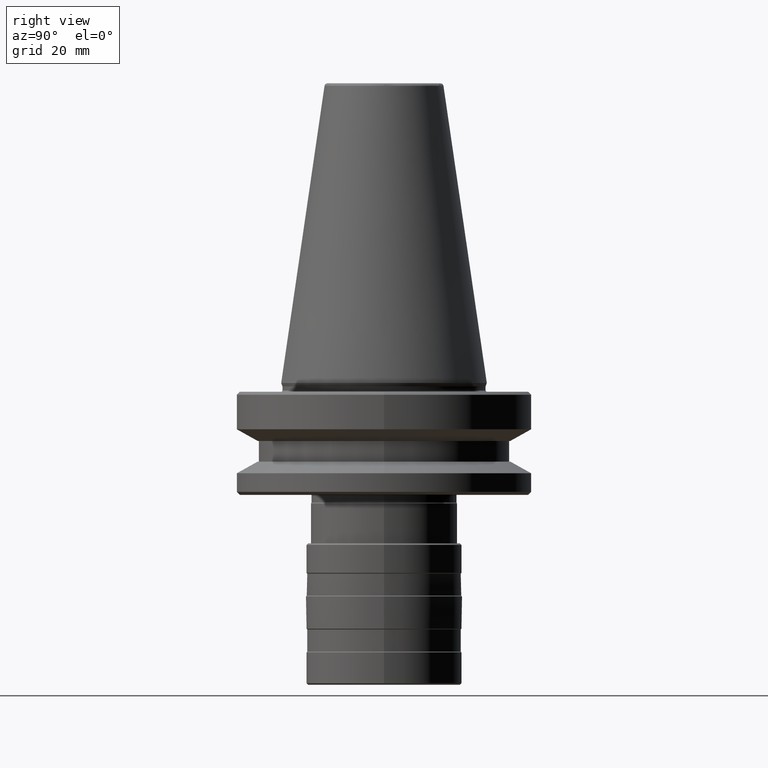
[diagram: clean part render]
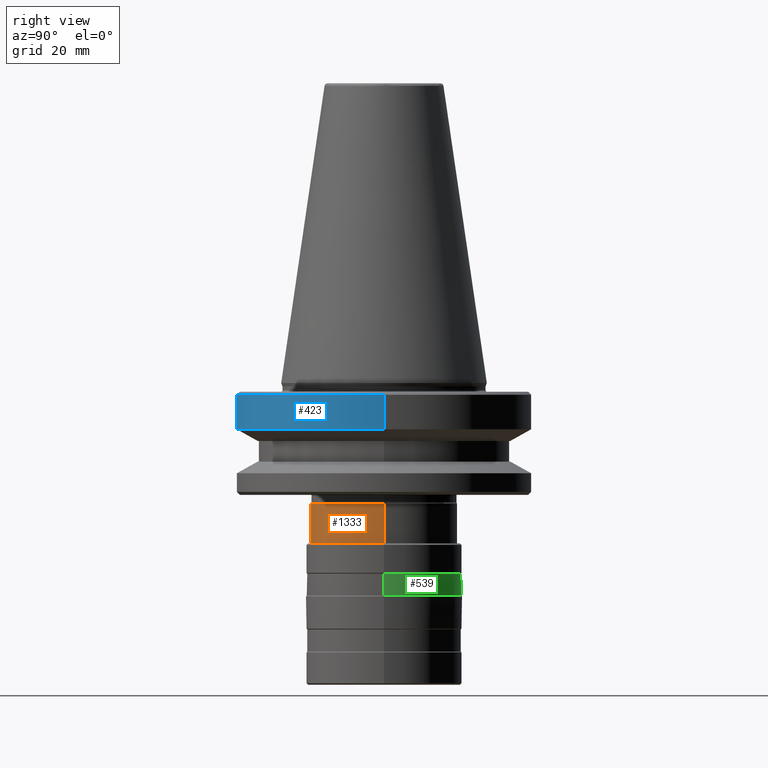
[diagram: same view with three faces highlighted in distinct colors, each labeled with its STEP entity id]
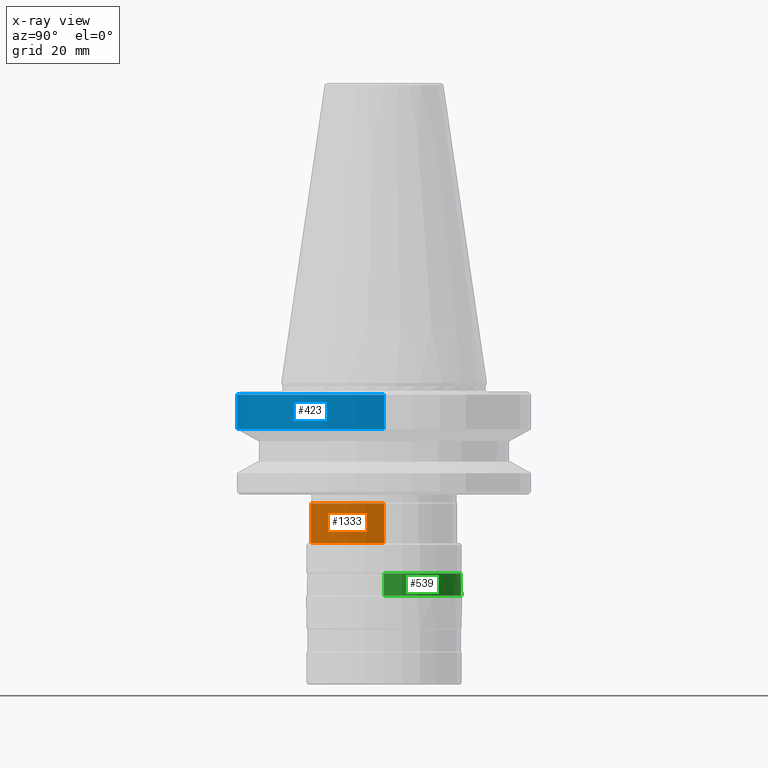
[diagram: x-ray of the same camera — body ghosted, the three highlighted faces saturated]
A machine part, right view with three faces highlighted in distinct colors.
The next image is the same camera in x-ray (body ghosted, the three faces saturated) — at least one of them is partly hidden behind the body in this view.
Their STEP definitions:

[orange] entity #1333 — the highlighted cylindrical surface (partial cylindrical patch) has radius 25 mm, axis along (0, 0, -1).
#31 = CARTESIAN_POINT ( 'NONE',  ( -25.00000000000000000, 0.0000000000000000000, -54.49999999999999300 ) ) ;
#35 = VERTEX_POINT ( 'NONE', #1122 ) ;
#59 = DIRECTION ( 'NONE',  ( -1.000000000000000000, 0.0000000000000000000, 0.0000000000000000000 ) ) ;
#61 = DIRECTION ( 'NONE',  ( -0.0000000000000000000, -0.0000000000000000000, 1.000000000000000000 ) ) ;
#62 = CARTESIAN_POINT ( 'NONE',  ( 0.0000000000000000000, 0.0000000000000000000, -41.00000000000000700 ) ) ;
#162 = EDGE_CURVE ( 'NONE', #1077, #736, #838, .T. ) ;
#175 = ORIENTED_EDGE ( 'NONE', *, *, #344, .T. ) ;
#176 = VECTOR ( 'NONE', #688, 1000.000000000000000 ) ;
#208 = CARTESIAN_POINT ( 'NONE',  ( -25.00000000000000700, 0.0000000000000000000, -41.00000000000000700 ) ) ;
#279 = CARTESIAN_POINT ( 'NONE',  ( 25.00000000000000000, 3.061616997868383000E-015, -54.49999999999999300 ) ) ;
#282 = CARTESIAN_POINT ( 'NONE',  ( 25.00000000000000000, 3.061616997868383000E-015, -41.00000000000000000 ) ) ;
#294 = DIRECTION ( 'NONE',  ( 0.0000000000000000000, 0.0000000000000000000, -1.000000000000000000 ) ) ;
#344 = EDGE_CURVE ( 'NONE', #845, #1077, #603, .T. ) ;
#526 = CARTESIAN_POINT ( 'NONE',  ( 0.0000000000000000000, 0.0000000000000000000, -41.00000000000000000 ) ) ;
#585 = CYLINDRICAL_SURFACE ( 'NONE', #1279, 25.00000000000000000 ) ;
#587 = VECTOR ( 'NONE', #294, 1000.000000000000000 ) ;
#603 = LINE ( 'NONE', #695, #176 ) ;
#615 = ORIENTED_EDGE ( 'NONE', *, *, #1020, .F. ) ;
#621 = FACE_OUTER_BOUND ( 'NONE', #1445, .T. ) ;
#677 = EDGE_CURVE ( 'NONE', #35, #736, #2044, .T. ) ;
#688 = DIRECTION ( 'NONE',  ( 0.0000000000000000000, 0.0000000000000000000, -1.000000000000000000 ) ) ;
#695 = CARTESIAN_POINT ( 'NONE',  ( -25.00000000000000000, 0.0000000000000000000, -41.00000000000000000 ) ) ;
#736 = VERTEX_POINT ( 'NONE', #279 ) ;
#799 = DIRECTION ( 'NONE',  ( -1.000000000000000000, 0.0000000000000000000, 0.0000000000000000000 ) ) ;
#808 = DIRECTION ( 'NONE',  ( -0.0000000000000000000, -0.0000000000000000000, 1.000000000000000000 ) ) ;
#838 = CIRCLE ( 'NONE', #1860, 25.00000000000000000 ) ;
#845 = VERTEX_POINT ( 'NONE', #208 ) ;
#901 = CARTESIAN_POINT ( 'NONE',  ( 0.0000000000000000000, 0.0000000000000000000, -54.49999999999999300 ) ) ;
#968 = ORIENTED_EDGE ( 'NONE', *, *, #162, .T. ) ;
#1020 = EDGE_CURVE ( 'NONE', #845, #35, #1642, .T. ) ;
#1077 = VERTEX_POINT ( 'NONE', #31 ) ;
#1122 = CARTESIAN_POINT ( 'NONE',  ( 25.00000000000000700, 3.061616997868383800E-015, -41.00000000000000700 ) ) ;
#1279 = AXIS2_PLACEMENT_3D ( 'NONE', #526, #2057, #2042 ) ;
#1333 = ADVANCED_FACE ( 'NONE', ( #621 ), #585, .T. ) ;
#1445 = EDGE_LOOP ( 'NONE', ( #1466, #615, #175, #968 ) ) ;
#1466 = ORIENTED_EDGE ( 'NONE', *, *, #677, .F. ) ;
#1634 = AXIS2_PLACEMENT_3D ( 'NONE', #62, #61, #59 ) ;
#1642 = CIRCLE ( 'NONE', #1634, 25.00000000000000700 ) ;
#1860 = AXIS2_PLACEMENT_3D ( 'NONE', #901, #808, #799 ) ;
#2042 = DIRECTION ( 'NONE',  ( -1.000000000000000000, 0.0000000000000000000, 0.0000000000000000000 ) ) ;
#2044 = LINE ( 'NONE', #282, #587 ) ;
#2057 = DIRECTION ( 'NONE',  ( 0.0000000000000000000, 0.0000000000000000000, -1.000000000000000000 ) ) ;

[blue] entity #423 — the highlighted cylindrical surface (partial cylindrical patch) has radius 50 mm, axis along (0, 0, 1).
#9 = VECTOR ( 'NONE', #770, 1000.000000000000000 ) ;
#51 = ORIENTED_EDGE ( 'NONE', *, *, #964, .T. ) ;
#96 = DIRECTION ( 'NONE',  ( 1.000000000000000000, 0.0000000000000000000, 0.0000000000000000000 ) ) ;
#98 = DIRECTION ( 'NONE',  ( -0.0000000000000000000, -0.0000000000000000000, 1.000000000000000000 ) ) ;
#100 = CARTESIAN_POINT ( 'NONE',  ( 0.0000000000000000000, 0.0000000000000000000, -15.72885534390020000 ) ) ;
#105 = LINE ( 'NONE', #771, #9 ) ;
#124 = VERTEX_POINT ( 'NONE', #2002 ) ;
#138 = EDGE_CURVE ( 'NONE', #1794, #706, #450, .T. ) ;
#140 = ORIENTED_EDGE ( 'NONE', *, *, #1992, .F. ) ;
#239 = ORIENTED_EDGE ( 'NONE', *, *, #138, .F. ) ;
#288 = CARTESIAN_POINT ( 'NONE',  ( 50.00000000071546700, 6.123233995824384900E-015, -4.000000000715458800 ) ) ;
#394 = CIRCLE ( 'NONE', #1613, 49.99999999999767700 ) ;
#400 = VERTEX_POINT ( 'NONE', #581 ) ;
#414 = FACE_OUTER_BOUND ( 'NONE', #1867, .T. ) ;
#423 = ADVANCED_FACE ( 'NONE', ( #414 ), #1379, .T. ) ;
#435 = VECTOR ( 'NONE', #454, 1000.000000000000000 ) ;
#450 = CIRCLE ( 'NONE', #764, 50.00000000071546000 ) ;
#454 = DIRECTION ( 'NONE',  ( 0.0000000000000000000, 0.0000000000000000000, 1.000000000000000000 ) ) ;
#483 = CARTESIAN_POINT ( 'NONE',  ( 50.00000000000000000, 0.0000000000000000000, -15.70022000299999700 ) ) ;
#501 = EDGE_CURVE ( 'NONE', #400, #706, #1788, .T. ) ;
#550 = CARTESIAN_POINT ( 'NONE',  ( 0.0000000000000000000, 0.0000000000000000000, -15.70022000299999700 ) ) ;
#554 = DIRECTION ( 'NONE',  ( 0.0000000000000000000, 0.0000000000000000000, 1.000000000000000000 ) ) ;
#568 = DIRECTION ( 'NONE',  ( 1.000000000000000000, 0.0000000000000000000, 0.0000000000000000000 ) ) ;
#581 = CARTESIAN_POINT ( 'NONE',  ( 49.99999999999767700, 0.0000000000000000000, -15.72885534390020000 ) ) ;
#706 = VERTEX_POINT ( 'NONE', #288 ) ;
#764 = AXIS2_PLACEMENT_3D ( 'NONE', #1270, #1124, #1661 ) ;
#770 = DIRECTION ( 'NONE',  ( 0.0000000000000000000, 0.0000000000000000000, 1.000000000000000000 ) ) ;
#771 = CARTESIAN_POINT ( 'NONE',  ( -50.00000000000000000, 6.123233995736766100E-015, -15.70022000299999700 ) ) ;
#964 = EDGE_CURVE ( 'NONE', #124, #400, #394, .T. ) ;
#1012 = CARTESIAN_POINT ( 'NONE',  ( -50.00000000071546700, 0.0000000000000000000, -4.000000000715458800 ) ) ;
#1124 = DIRECTION ( 'NONE',  ( -0.0000000000000000000, -0.0000000000000000000, 1.000000000000000000 ) ) ;
#1136 = ORIENTED_EDGE ( 'NONE', *, *, #501, .T. ) ;
#1270 = CARTESIAN_POINT ( 'NONE',  ( 0.0000000000000000000, 0.0000000000000000000, -4.000000000715458800 ) ) ;
#1379 = CYLINDRICAL_SURFACE ( 'NONE', #1718, 50.00000000000000000 ) ;
#1613 = AXIS2_PLACEMENT_3D ( 'NONE', #100, #98, #96 ) ;
#1661 = DIRECTION ( 'NONE',  ( -1.000000000000000000, 0.0000000000000000000, 5.204170427855954000E-017 ) ) ;
#1718 = AXIS2_PLACEMENT_3D ( 'NONE', #550, #554, #568 ) ;
#1788 = LINE ( 'NONE', #483, #435 ) ;
#1794 = VERTEX_POINT ( 'NONE', #1012 ) ;
#1867 = EDGE_LOOP ( 'NONE', ( #140, #51, #1136, #239 ) ) ;
#1992 = EDGE_CURVE ( 'NONE', #124, #1794, #105, .T. ) ;
#2002 = CARTESIAN_POINT ( 'NONE',  ( -49.99999999999767700, 6.123233995736482100E-015, -15.72885534390020000 ) ) ;

[green] entity #539 — the highlighted cylindrical surface (partial cylindrical patch) has radius 26.25 mm, axis along (0, 0, 1).
#47 = EDGE_CURVE ( 'NONE', #328, #326, #2045, .T. ) ;
#72 = CARTESIAN_POINT ( 'NONE',  ( -26.25000000000000000, 3.214697847761802000E-015, -72.25000000000000000 ) ) ;
#76 = CARTESIAN_POINT ( 'NONE',  ( -26.25000000000000000, 3.214697847761802000E-015, -64.75000000000000000 ) ) ;
#78 = DIRECTION ( 'NONE',  ( 0.0000000000000000000, 0.0000000000000000000, 1.000000000000000000 ) ) ;
#179 = LINE ( 'NONE', #1089, #1762 ) ;
#202 = ORIENTED_EDGE ( 'NONE', *, *, #1592, .F. ) ;
#240 = CARTESIAN_POINT ( 'NONE',  ( 26.25000000000000000, 0.0000000000000000000, -72.25000000000005700 ) ) ;
#247 = VECTOR ( 'NONE', #78, 1000.000000000000000 ) ;
#276 = CIRCLE ( 'NONE', #1428, 26.25000000000000000 ) ;
#326 = VERTEX_POINT ( 'NONE', #697 ) ;
#328 = VERTEX_POINT ( 'NONE', #691 ) ;
#386 = CARTESIAN_POINT ( 'NONE',  ( 26.25000000000000000, 0.0000000000000000000, -64.75000000000000000 ) ) ;
#399 = DIRECTION ( 'NONE',  ( 1.000000000000000000, 0.0000000000000000000, 0.0000000000000000000 ) ) ;
#410 = CARTESIAN_POINT ( 'NONE',  ( 0.0000000000000000000, 0.0000000000000000000, -72.25000000000000000 ) ) ;
#420 = DIRECTION ( 'NONE',  ( 0.0000000000000000000, 0.0000000000000000000, 1.000000000000000000 ) ) ;
#458 = CIRCLE ( 'NONE', #1582, 26.25000000000000000 ) ;
#539 = ADVANCED_FACE ( 'NONE', ( #1724 ), #728, .T. ) ;
#561 = VERTEX_POINT ( 'NONE', #386 ) ;
#601 = LINE ( 'NONE', #72, #247 ) ;
#691 = CARTESIAN_POINT ( 'NONE',  ( 0.0000000000000000000, 26.25000000000000000, -72.25000000000005700 ) ) ;
#697 = CARTESIAN_POINT ( 'NONE',  ( -26.25000000000000000, 3.214697847761802000E-015, -72.25000000000005700 ) ) ;
#728 = CYLINDRICAL_SURFACE ( 'NONE', #1842, 26.25000000000000000 ) ;
#797 = VERTEX_POINT ( 'NONE', #240 ) ;
#881 = AXIS2_PLACEMENT_3D ( 'NONE', #985, #1995, #1172 ) ;
#985 = CARTESIAN_POINT ( 'NONE',  ( 0.0000000000000000000, 0.0000000000000000000, -72.25000000000005700 ) ) ;
#1046 = EDGE_CURVE ( 'NONE', #326, #1232, #601, .T. ) ;
#1087 = DIRECTION ( 'NONE',  ( 0.0000000000000000000, 0.0000000000000000000, 1.000000000000000000 ) ) ;
#1088 = ORIENTED_EDGE ( 'NONE', *, *, #47, .T. ) ;
#1089 = CARTESIAN_POINT ( 'NONE',  ( 26.25000000000000000, 0.0000000000000000000, -72.25000000000000000 ) ) ;
#1172 = DIRECTION ( 'NONE',  ( 1.000000000000000000, 0.0000000000000000000, 0.0000000000000000000 ) ) ;
#1232 = VERTEX_POINT ( 'NONE', #76 ) ;
#1346 = ORIENTED_EDGE ( 'NONE', *, *, #1530, .T. ) ;
#1428 = AXIS2_PLACEMENT_3D ( 'NONE', #1506, #1502, #1498 ) ;
#1452 = EDGE_CURVE ( 'NONE', #561, #1232, #458, .T. ) ;
#1498 = DIRECTION ( 'NONE',  ( 1.000000000000000000, 0.0000000000000000000, 0.0000000000000000000 ) ) ;
#1502 = DIRECTION ( 'NONE',  ( 0.0000000000000000000, 0.0000000000000000000, 1.000000000000000000 ) ) ;
#1506 = CARTESIAN_POINT ( 'NONE',  ( 0.0000000000000000000, 0.0000000000000000000, -72.25000000000005700 ) ) ;
#1530 = EDGE_CURVE ( 'NONE', #797, #328, #276, .T. ) ;
#1565 = DIRECTION ( 'NONE',  ( 1.000000000000000000, 0.0000000000000000000, 0.0000000000000000000 ) ) ;
#1568 = DIRECTION ( 'NONE',  ( 0.0000000000000000000, 0.0000000000000000000, 1.000000000000000000 ) ) ;
#1571 = CARTESIAN_POINT ( 'NONE',  ( 0.0000000000000000000, 0.0000000000000000000, -64.75000000000000000 ) ) ;
#1582 = AXIS2_PLACEMENT_3D ( 'NONE', #1571, #1568, #1565 ) ;
#1592 = EDGE_CURVE ( 'NONE', #797, #561, #179, .T. ) ;
#1618 = ORIENTED_EDGE ( 'NONE', *, *, #1046, .T. ) ;
#1724 = FACE_OUTER_BOUND ( 'NONE', #1941, .T. ) ;
#1738 = ORIENTED_EDGE ( 'NONE', *, *, #1452, .F. ) ;
#1762 = VECTOR ( 'NONE', #1087, 1000.000000000000000 ) ;
#1842 = AXIS2_PLACEMENT_3D ( 'NONE', #410, #420, #399 ) ;
#1941 = EDGE_LOOP ( 'NONE', ( #1088, #1618, #1738, #202, #1346 ) ) ;
#1995 = DIRECTION ( 'NONE',  ( 0.0000000000000000000, 0.0000000000000000000, 1.000000000000000000 ) ) ;
#2045 = CIRCLE ( 'NONE', #881, 26.25000000000000000 ) ;